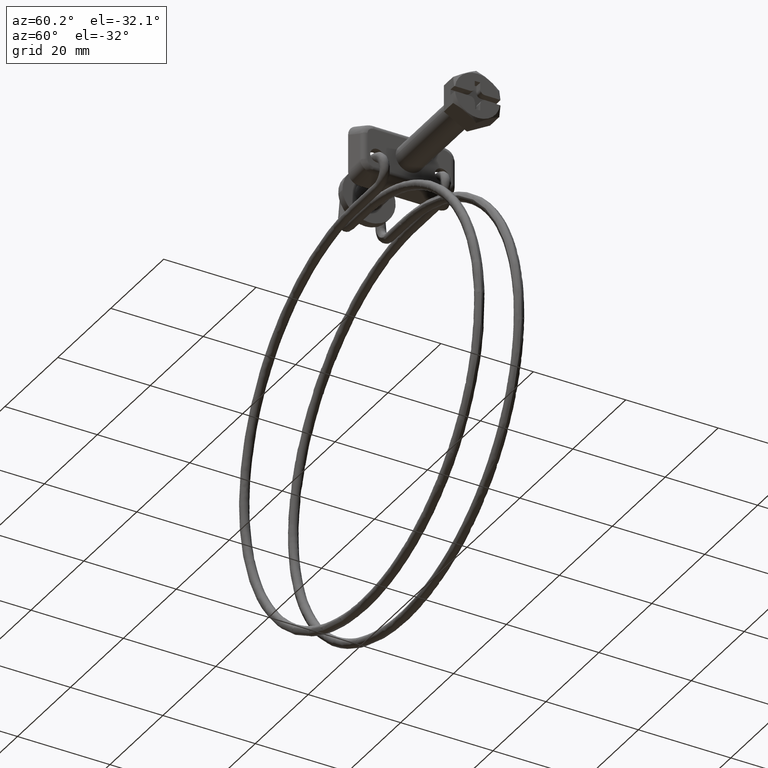
[diagram: clean part render]
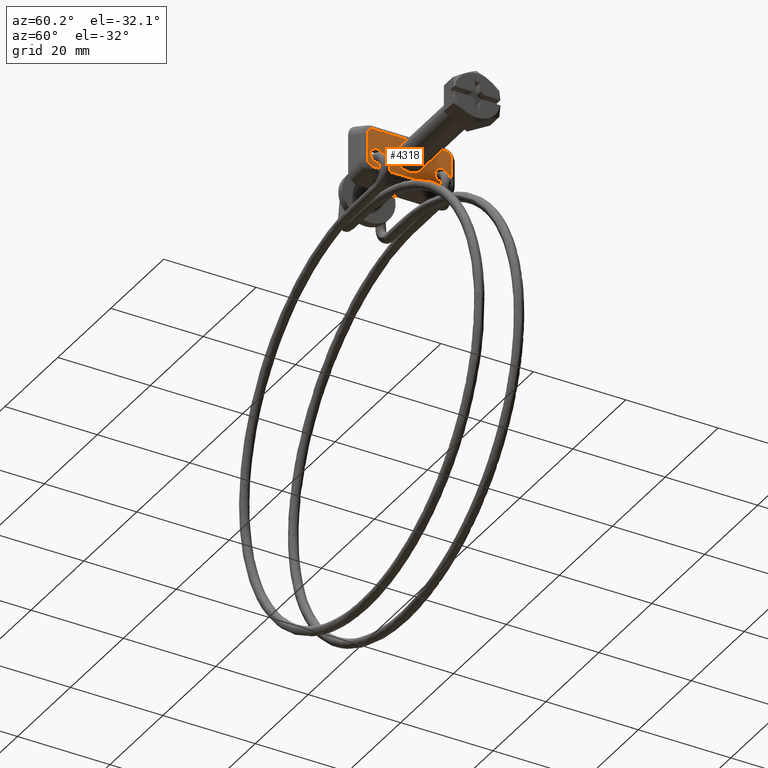
[diagram: same view with one face highlighted and labeled with its STEP entity id]
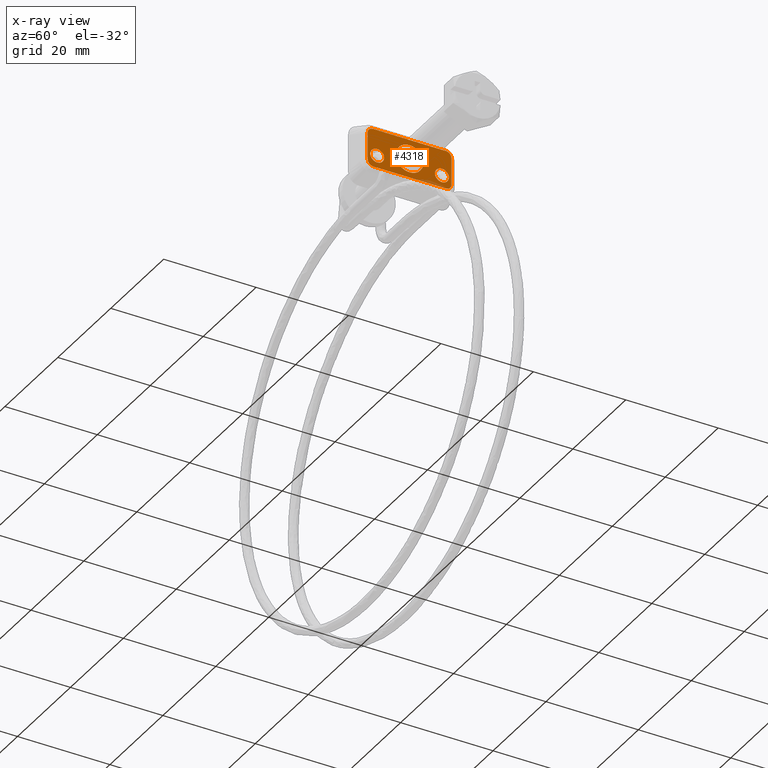
[diagram: x-ray of the same camera — body ghosted, the highlighted face saturated]
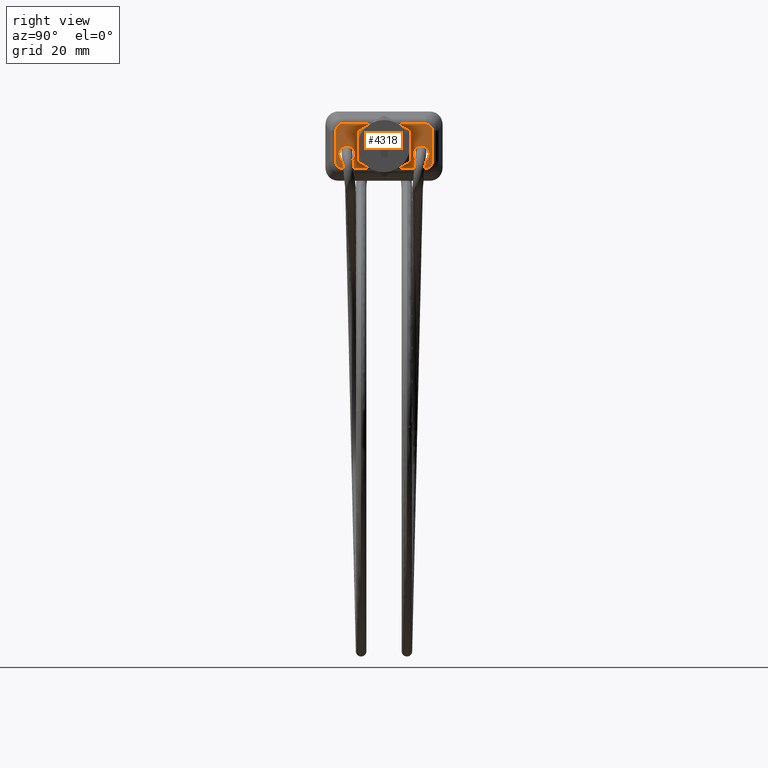
[diagram: same view with one face highlighted and labeled with its STEP entity id]
A machine part, auxiliary view. The second image highlights one B-rep face of the part: STEP entity #4318.
The next image is the same camera in x-ray: the body ghosted, the highlighted face saturated — about 3% of this face is hidden behind the body in this view.
A second angle (right view) of the same face is appended — the face is thin or edge-on in the first view.
In plain terms, the highlighted face is a freeform B-spline surface patch.
Its self-contained STEP definition (entity closure, byte-faithful):
#1712=CARTESIAN_POINT('',(-34.700000000000003,-2.979028579050985,0.354102704306908));
#1713=VERTEX_POINT('',#1712);
#1719=CARTESIAN_POINT('',(-34.700000000000003,0.0,-3.0));
#1720=VERTEX_POINT('',#1719);
#1721=CARTESIAN_POINT('',(-34.700000000000003,-2.979028579050986,0.354102704306908));
#1722=CARTESIAN_POINT('',(-34.700000000000003,-3.000000000000000,0.177672359295922));
#1723=CARTESIAN_POINT('',(-34.700000000000003,-3.0,0.0));
#1724=CARTESIAN_POINT('',(-34.700000000000003,-3.0,-3.0));
#1725=CARTESIAN_POINT('',(-34.700000000000003,0.0,-3.0));
#1733=(BOUNDED_CURVE()B_SPLINE_CURVE(2,(#1721,#1722,#1723,#1724,#1725),.UNSPECIFIED.,.F.,.U.)B_SPLINE_CURVE_WITH_KNOTS((3,2,3),(0.229562473477449,0.250000000000000,0.500000000000000),.UNSPECIFIED.)CURVE()GEOMETRIC_REPRESENTATION_ITEM()RATIONAL_B_SPLINE_CURVE((0.956026754113022,0.976055948288899,1.0,0.707106781186548,1.0))REPRESENTATION_ITEM(''));
#1734=EDGE_CURVE('',#1713,#1720,#1733,.T.);
#1736=CARTESIAN_POINT('',(-34.700000000000003,2.994404395260893,-0.183145618681546));
#1737=VERTEX_POINT('',#1736);
#1738=CARTESIAN_POINT('',(-34.700000000000003,0.0,-3.0));
#1739=CARTESIAN_POINT('',(-34.700000000000003,2.822118200571707,-2.999999999999999));
#1740=CARTESIAN_POINT('',(-34.700000000000003,2.994404395260893,-0.183145618681546));
#1748=(BOUNDED_CURVE()B_SPLINE_CURVE(2,(#1738,#1739,#1740),.UNSPECIFIED.,.F.,.U.)B_SPLINE_CURVE_WITH_KNOTS((3,3),(0.500000000000000,0.739332962233096),.UNSPECIFIED.)CURVE()GEOMETRIC_REPRESENTATION_ITEM()RATIONAL_B_SPLINE_CURVE((1.0,0.719603993293560,0.976072041654188))REPRESENTATION_ITEM(''));
#1749=EDGE_CURVE('',#1720,#1737,#1748,.T.);
#1823=CARTESIAN_POINT('',(-34.700000000000003,0.0,3.0));
#1824=VERTEX_POINT('',#1823);
#1825=CARTESIAN_POINT('',(-34.700000000000003,2.994404395260893,-0.183145618681546));
#1826=CARTESIAN_POINT('',(-34.699999999999996,3.0,-0.091658289972958));
#1827=CARTESIAN_POINT('',(-34.700000000000003,3.0,0.0));
#1828=CARTESIAN_POINT('',(-34.700000000000003,3.0,3.0));
#1829=CARTESIAN_POINT('',(-34.700000000000003,0.0,3.0));
#1837=(BOUNDED_CURVE()B_SPLINE_CURVE(2,(#1825,#1826,#1827,#1828,#1829),.UNSPECIFIED.,.F.,.U.)B_SPLINE_CURVE_WITH_KNOTS((3,2,3),(0.739332962233097,0.750000000000000,1.0),.UNSPECIFIED.)CURVE()GEOMETRIC_REPRESENTATION_ITEM()RATIONAL_B_SPLINE_CURVE((0.976072041654189,0.987502787892989,1.0,0.707106781186548,1.0))REPRESENTATION_ITEM(''));
#1838=EDGE_CURVE('',#1737,#1824,#1837,.T.);
#1840=CARTESIAN_POINT('',(-34.700000000000003,0.0,3.0));
#1841=CARTESIAN_POINT('',(-34.700000000000003,-2.664523577247677,3.0));
#1842=CARTESIAN_POINT('',(-34.700000000000003,-2.979028579050985,0.354102704306908));
#1850=(BOUNDED_CURVE()B_SPLINE_CURVE(2,(#1840,#1841,#1842),.UNSPECIFIED.,.F.,.U.)B_SPLINE_CURVE_WITH_KNOTS((3,3),(0.0,0.229562473477449),.UNSPECIFIED.)CURVE()GEOMETRIC_REPRESENTATION_ITEM()RATIONAL_B_SPLINE_CURVE((1.0,0.731050832897648,0.956026754113022))REPRESENTATION_ITEM(''));
#1851=EDGE_CURVE('',#1824,#1713,#1850,.T.);
#1902=CARTESIAN_POINT('',(-34.700000000000003,-5.728324125066287,-0.704487291671920));
#1903=VERTEX_POINT('',#1902);
#1909=CARTESIAN_POINT('',(-34.700000000000003,-7.000000000000110,1.140581E-013));
#1910=VERTEX_POINT('',#1909);
#1911=CARTESIAN_POINT('',(-34.700000000000003,-5.728324125066287,-0.704487291671920));
#1912=CARTESIAN_POINT('',(-34.700000000000010,-6.169024939205200,1.140581E-013));
#1913=CARTESIAN_POINT('',(-34.700000000000003,-7.000000000000110,1.140581E-013));
#1921=(BOUNDED_CURVE()B_SPLINE_CURVE(2,(#1911,#1912,#1913),.UNSPECIFIED.,.F.,.U.)B_SPLINE_CURVE_WITH_KNOTS((3,3),(0.840693054655305,1.0),.UNSPECIFIED.)CURVE()GEOMETRIC_REPRESENTATION_ITEM()RATIONAL_B_SPLINE_CURVE((0.864584606794672,0.813360303994614,1.0))REPRESENTATION_ITEM(''));
#1922=EDGE_CURVE('',#1903,#1910,#1921,.T.);
#1924=CARTESIAN_POINT('',(-34.700000000000003,-7.000000000000110,-2.999999999999886));
#1925=VERTEX_POINT('',#1924);
#1926=CARTESIAN_POINT('',(-34.700000000000003,-7.000000000000110,1.140581E-013));
#1927=CARTESIAN_POINT('',(-34.700000000000003,-8.500000000000110,1.140581E-013));
#1928=CARTESIAN_POINT('',(-34.700000000000003,-8.500000000000110,-1.499999999999886));
#1929=CARTESIAN_POINT('',(-34.700000000000003,-8.500000000000110,-2.999999999999886));
#1930=CARTESIAN_POINT('',(-34.700000000000003,-7.000000000000110,-2.999999999999886));
#1938=(BOUNDED_CURVE()B_SPLINE_CURVE(2,(#1926,#1927,#1928,#1929,#1930),.UNSPECIFIED.,.F.,.U.)B_SPLINE_CURVE_WITH_KNOTS((3,2,3),(0.0,0.250000000000000,0.500000000000000),.UNSPECIFIED.)CURVE()GEOMETRIC_REPRESENTATION_ITEM()RATIONAL_B_SPLINE_CURVE((1.0,0.707106781186548,1.0,0.707106781186548,1.0))REPRESENTATION_ITEM(''));
#1939=EDGE_CURVE('',#1910,#1925,#1938,.T.);
#1941=CARTESIAN_POINT('',(-34.700000000000003,-5.502797802369217,-1.591572809333338));
#1942=VERTEX_POINT('',#1941);
#1943=CARTESIAN_POINT('',(-34.700000000000003,-7.000000000000110,-2.999999999999886));
#1944=CARTESIAN_POINT('',(-34.700000000000010,-5.588940899700432,-2.999999999999885));
#1945=CARTESIAN_POINT('',(-34.700000000000003,-5.502797802369217,-1.591572809333339));
#1953=(BOUNDED_CURVE()B_SPLINE_CURVE(2,(#1943,#1944,#1945),.UNSPECIFIED.,.F.,.U.)B_SPLINE_CURVE_WITH_KNOTS((3,3),(0.500000000000000,0.739332962234784),.UNSPECIFIED.)CURVE()GEOMETRIC_REPRESENTATION_ITEM()RATIONAL_B_SPLINE_CURVE((1.0,0.719603993291583,0.976072041657804))REPRESENTATION_ITEM(''));
#1954=EDGE_CURVE('',#1925,#1942,#1953,.T.);
#2041=CARTESIAN_POINT('',(-34.700000000000003,-5.502797802369217,-1.591572809333339));
#2042=CARTESIAN_POINT('',(-34.700000000000003,-5.500000000000110,-1.545829144979024));
#2043=CARTESIAN_POINT('',(-34.700000000000003,-5.500000000000111,-1.499999999999886));
#2044=CARTESIAN_POINT('',(-34.700000000000010,-5.500000000000111,-1.069477414972563));
#2045=CARTESIAN_POINT('',(-34.700000000000003,-5.728324125066287,-0.704487291671920));
#2053=(BOUNDED_CURVE()B_SPLINE_CURVE(2,(#2041,#2042,#2043,#2044,#2045),.UNSPECIFIED.,.F.,.U.)B_SPLINE_CURVE_WITH_KNOTS((3,2,3),(0.739332962234785,0.750000000000000,0.840693054655306),.UNSPECIFIED.)CURVE()GEOMETRIC_REPRESENTATION_ITEM()RATIONAL_B_SPLINE_CURVE((0.976072041657805,0.987502787894965,1.0,0.893746477191932,0.864584606794672))REPRESENTATION_ITEM(''));
#2054=EDGE_CURVE('',#1942,#1903,#2053,.T.);
#2105=CARTESIAN_POINT('',(-34.700000000000003,5.910109457539743,-2.530601089391666));
#2106=VERTEX_POINT('',#2105);
#2112=CARTESIAN_POINT('',(-34.700000000000003,6.999999999999830,-2.999999999999886));
#2113=VERTEX_POINT('',#2112);
#2114=CARTESIAN_POINT('',(-34.700000000000010,5.910109457539743,-2.530601089391666));
#2115=CARTESIAN_POINT('',(-34.699999999999996,6.353972890660838,-2.999999999999886));
#2116=CARTESIAN_POINT('',(-34.700000000000003,6.999999999999830,-2.999999999999886));
#2124=(BOUNDED_CURVE()B_SPLINE_CURVE(2,(#2114,#2115,#2116),.UNSPECIFIED.,.F.,.U.)B_SPLINE_CURVE_WITH_KNOTS((3,3),(0.370781876639337,0.500000000000000),.UNSPECIFIED.)CURVE()GEOMETRIC_REPRESENTATION_ITEM()RATIONAL_B_SPLINE_CURVE((0.853720152882610,0.848611551679446,1.0))REPRESENTATION_ITEM(''));
#2125=EDGE_CURVE('',#2106,#2113,#2124,.T.);
#2127=CARTESIAN_POINT('',(-34.700000000000003,6.999999999999830,1.140581E-013));
#2128=VERTEX_POINT('',#2127);
#2129=CARTESIAN_POINT('',(-34.700000000000003,6.999999999999830,-2.999999999999886));
#2130=CARTESIAN_POINT('',(-34.700000000000003,8.499999999999831,-2.999999999999886));
#2131=CARTESIAN_POINT('',(-34.700000000000003,8.499999999999831,-1.499999999999886));
#2132=CARTESIAN_POINT('',(-34.700000000000003,8.499999999999831,1.140581E-013));
#2133=CARTESIAN_POINT('',(-34.700000000000003,6.999999999999830,1.140581E-013));
#2141=(BOUNDED_CURVE()B_SPLINE_CURVE(2,(#2129,#2130,#2131,#2132,#2133),.UNSPECIFIED.,.F.,.U.)B_SPLINE_CURVE_WITH_KNOTS((3,2,3),(0.500000000000000,0.750000000000000,1.0),.UNSPECIFIED.)CURVE()GEOMETRIC_REPRESENTATION_ITEM()RATIONAL_B_SPLINE_CURVE((1.0,0.707106781186548,1.0,0.707106781186548,1.0))REPRESENTATION_ITEM(''));
#2142=EDGE_CURVE('',#2113,#2128,#2141,.T.);
#2144=CARTESIAN_POINT('',(-34.700000000000003,5.502797802368937,-1.408427190666434));
#2145=VERTEX_POINT('',#2144);
#2146=CARTESIAN_POINT('',(-34.700000000000003,6.999999999999830,1.140581E-013));
#2147=CARTESIAN_POINT('',(-34.700000000000010,5.588940899700145,1.140581E-013));
#2148=CARTESIAN_POINT('',(-34.700000000000003,5.502797802368937,-1.408427190666435));
#2156=(BOUNDED_CURVE()B_SPLINE_CURVE(2,(#2146,#2147,#2148),.UNSPECIFIED.,.F.,.U.)B_SPLINE_CURVE_WITH_KNOTS((3,3),(0.0,0.239332962234785),.UNSPECIFIED.)CURVE()GEOMETRIC_REPRESENTATION_ITEM()RATIONAL_B_SPLINE_CURVE((1.0,0.719603993291582,0.976072041657806))REPRESENTATION_ITEM(''));
#2157=EDGE_CURVE('',#2128,#2145,#2156,.T.);
#2244=CARTESIAN_POINT('',(-34.700000000000003,5.502797802368937,-1.408427190666434));
#2245=CARTESIAN_POINT('',(-34.700000000000003,5.499999999999830,-1.454170855020748));
#2246=CARTESIAN_POINT('',(-34.700000000000003,5.499999999999830,-1.499999999999886));
#2247=CARTESIAN_POINT('',(-34.700000000000010,5.499999999999830,-2.096898021659110));
#2248=CARTESIAN_POINT('',(-34.700000000000010,5.910109457539743,-2.530601089391666));
#2256=(BOUNDED_CURVE()B_SPLINE_CURVE(2,(#2244,#2245,#2246,#2247,#2248),.UNSPECIFIED.,.F.,.U.)B_SPLINE_CURVE_WITH_KNOTS((3,2,3),(0.239332962234785,0.250000000000000,0.370781876639336),.UNSPECIFIED.)CURVE()GEOMETRIC_REPRESENTATION_ITEM()RATIONAL_B_SPLINE_CURVE((0.976072041657806,0.987502787894966,1.0,0.858495229507102,0.853720152882610))REPRESENTATION_ITEM(''));
#2257=EDGE_CURVE('',#2145,#2106,#2256,.T.);
#3251=CARTESIAN_POINT('',(-34.700000000000003,7.837173833659421,-4.168399938202366));
#3252=VERTEX_POINT('',#3251);
#3283=CARTESIAN_POINT('',(-34.700000000000003,9.063068073994790,-2.898235503023255));
#3284=VERTEX_POINT('',#3283);
#3298=CARTESIAN_POINT('',(-34.700000000000003,7.837173833659350,-4.168399938202257));
#3299=CARTESIAN_POINT('',(-34.700000000000003,9.063068073994772,-4.168399938202319));
#3300=CARTESIAN_POINT('',(-34.700000000000003,9.063068073994794,-2.898235503023259));
#3308=(BOUNDED_CURVE()B_SPLINE_CURVE(2,(#3298,#3299,#3300),.UNSPECIFIED.,.F.,.U.)CURVE()GEOMETRIC_REPRESENTATION_ITEM()QUASI_UNIFORM_CURVE()RATIONAL_B_SPLINE_CURVE((1.0,0.736600277350782,1.0))REPRESENTATION_ITEM(''));
#3309=EDGE_CURVE('',#3252,#3284,#3308,.T.);
#3330=CARTESIAN_POINT('',(-34.700000000000003,9.063068073994790,2.898234503023515));
#3331=VERTEX_POINT('',#3330);
#3345=CARTESIAN_POINT('',(-34.700000000000003,9.063068073994790,-2.898235503023255));
#3346=CARTESIAN_POINT('',(-34.700000000000003,9.063068073994790,2.898234503023515));
#3347=QUASI_UNIFORM_CURVE('',1,(#3345,#3346),.UNSPECIFIED.,.F.,.U.);
#3348=EDGE_CURVE('',#3284,#3331,#3347,.T.);
#3373=CARTESIAN_POINT('',(-34.700000000000003,-7.837173833659261,-4.168399938202345));
#3374=VERTEX_POINT('',#3373);
#3396=CARTESIAN_POINT('',(-34.700000000000003,-7.837173833659261,-4.168399938202345));
#3397=CARTESIAN_POINT('',(-34.700000000000003,7.837173833659421,-4.168399938202366));
#3398=QUASI_UNIFORM_CURVE('',1,(#3396,#3397),.UNSPECIFIED.,.F.,.U.);
#3399=EDGE_CURVE('',#3374,#3252,#3398,.T.);
#3444=CARTESIAN_POINT('',(-34.700000000000003,7.837173833659399,4.168398938202520));
#3445=VERTEX_POINT('',#3444);
#3459=CARTESIAN_POINT('',(-34.700000000000003,9.063068073994794,2.898234503023514));
#3460=CARTESIAN_POINT('',(-34.700000000000003,9.063068073994794,4.168398938202528));
#3461=CARTESIAN_POINT('',(-34.700000000000003,7.837173833659408,4.168398938202532));
#3469=(BOUNDED_CURVE()B_SPLINE_CURVE(2,(#3459,#3460,#3461),.UNSPECIFIED.,.F.,.U.)CURVE()GEOMETRIC_REPRESENTATION_ITEM()QUASI_UNIFORM_CURVE()RATIONAL_B_SPLINE_CURVE((1.0,0.736600277350791,1.0))REPRESENTATION_ITEM(''));
#3470=EDGE_CURVE('',#3331,#3445,#3469,.T.);
#3527=CARTESIAN_POINT('',(-34.700000000000003,-9.063068073994819,-2.898235503023300));
#3528=VERTEX_POINT('',#3527);
#3558=CARTESIAN_POINT('',(-34.700000000000003,-9.063068073994884,-2.898235503023257));
#3559=CARTESIAN_POINT('',(-34.700000000000003,-9.063068073994952,-4.168399938202581));
#3560=CARTESIAN_POINT('',(-34.700000000000003,-7.837173833659266,-4.168399938202352));
#3568=(BOUNDED_CURVE()B_SPLINE_CURVE(2,(#3558,#3559,#3560),.UNSPECIFIED.,.F.,.U.)CURVE()GEOMETRIC_REPRESENTATION_ITEM()QUASI_UNIFORM_CURVE()RATIONAL_B_SPLINE_CURVE((1.0,0.736600277350715,1.0))REPRESENTATION_ITEM(''));
#3569=EDGE_CURVE('',#3528,#3374,#3568,.T.);
#3590=CARTESIAN_POINT('',(-34.700000000000003,-7.837173833659450,4.168398938202480));
#3591=VERTEX_POINT('',#3590);
#3605=CARTESIAN_POINT('',(-34.700000000000003,7.837173833659399,4.168398938202520));
#3606=CARTESIAN_POINT('',(-34.700000000000003,-7.837173833659450,4.168398938202480));
#3607=QUASI_UNIFORM_CURVE('',1,(#3605,#3606),.UNSPECIFIED.,.F.,.U.);
#3608=EDGE_CURVE('',#3445,#3591,#3607,.T.);
#3633=CARTESIAN_POINT('',(-34.700000000000003,-9.063068073994838,2.898234503023610));
#3634=VERTEX_POINT('',#3633);
#3656=CARTESIAN_POINT('',(-34.700000000000003,-9.063068073994838,2.898234503023610));
#3657=CARTESIAN_POINT('',(-34.700000000000003,-9.063068073994819,-2.898235503023300));
#3658=QUASI_UNIFORM_CURVE('',1,(#3656,#3657),.UNSPECIFIED.,.F.,.U.);
#3659=EDGE_CURVE('',#3634,#3528,#3658,.T.);
#3717=CARTESIAN_POINT('',(-34.700000000000003,-7.837173833659446,4.168398938202476));
#3718=CARTESIAN_POINT('',(-34.700000000000003,-9.063068073994696,4.168398938202474));
#3719=CARTESIAN_POINT('',(-34.700000000000003,-9.063068073994831,2.898234503023615));
#3727=(BOUNDED_CURVE()B_SPLINE_CURVE(2,(#3717,#3718,#3719),.UNSPECIFIED.,.F.,.U.)CURVE()GEOMETRIC_REPRESENTATION_ITEM()QUASI_UNIFORM_CURVE()RATIONAL_B_SPLINE_CURVE((1.0,0.736600277350829,1.0))REPRESENTATION_ITEM(''));
#3728=EDGE_CURVE('',#3591,#3634,#3727,.T.);
#4285=CARTESIAN_POINT('',(-34.700000000000003,-9.968468879765345,4.584821917875805));
#4286=CARTESIAN_POINT('',(-34.700000000000003,-9.968468879765345,-4.584822619728491));
#4287=CARTESIAN_POINT('',(-34.700000000000003,9.968469041825584,4.584821917875805));
#4288=CARTESIAN_POINT('',(-34.700000000000003,9.968469041825584,-4.584822619728491));
#4289=B_SPLINE_SURFACE_WITH_KNOTS('',1,1,((#4285,#4287),(#4286,#4288)),.UNSPECIFIED.,.F.,.F.,.U.,(2,2),(2,2),(0.0,9.169644537604295),(0.0,19.936937921590928),.UNSPECIFIED.);
#4290=ORIENTED_EDGE('',*,*,#3399,.T.);
#4291=ORIENTED_EDGE('',*,*,#3309,.T.);
#4292=ORIENTED_EDGE('',*,*,#3348,.T.);
#4293=ORIENTED_EDGE('',*,*,#3470,.T.);
#4294=ORIENTED_EDGE('',*,*,#3608,.T.);
#4295=ORIENTED_EDGE('',*,*,#3728,.T.);
#4296=ORIENTED_EDGE('',*,*,#3659,.T.);
#4297=ORIENTED_EDGE('',*,*,#3569,.T.);
#4298=EDGE_LOOP('',(#4290,#4291,#4292,#4293,#4294,#4295,#4296,#4297));
#4299=FACE_OUTER_BOUND('',#4298,.T.);
#4300=ORIENTED_EDGE('',*,*,#1939,.F.);
#4301=ORIENTED_EDGE('',*,*,#1922,.F.);
#4302=ORIENTED_EDGE('',*,*,#2054,.F.);
#4303=ORIENTED_EDGE('',*,*,#1954,.F.);
#4304=EDGE_LOOP('',(#4300,#4301,#4302,#4303));
#4305=FACE_BOUND('',#4304,.T.);
#4306=ORIENTED_EDGE('',*,*,#2142,.F.);
#4307=ORIENTED_EDGE('',*,*,#2125,.F.);
#4308=ORIENTED_EDGE('',*,*,#2257,.F.);
#4309=ORIENTED_EDGE('',*,*,#2157,.F.);
#4310=EDGE_LOOP('',(#4306,#4307,#4308,#4309));
#4311=FACE_BOUND('',#4310,.T.);
#4312=ORIENTED_EDGE('',*,*,#1749,.F.);
#4313=ORIENTED_EDGE('',*,*,#1734,.F.);
#4314=ORIENTED_EDGE('',*,*,#1851,.F.);
#4315=ORIENTED_EDGE('',*,*,#1838,.F.);
#4316=EDGE_LOOP('',(#4312,#4313,#4314,#4315));
#4317=FACE_BOUND('',#4316,.T.);
#4318=ADVANCED_FACE('',(#4299,#4305,#4311,#4317),#4289,.T.);